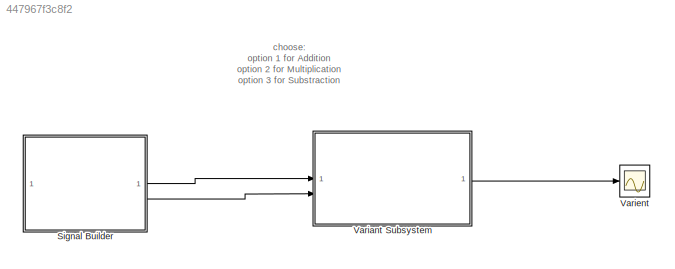
MODEL slx_447967f3c8f2
KIND model
CONFIG AbsTol = auto
CONFIG EnableMultiTasking = off
CONFIG FixedStep = auto
CONFIG MaxStep = auto
CONFIG MinStep = auto
CONFIG RelTol = 1e-3
CONFIG SampleTimeConstraint = Unconstrained
CONFIG SolverName = VariableStepAuto
CONFIG StartTime = 0.0
CONFIG StopTime = 10.0
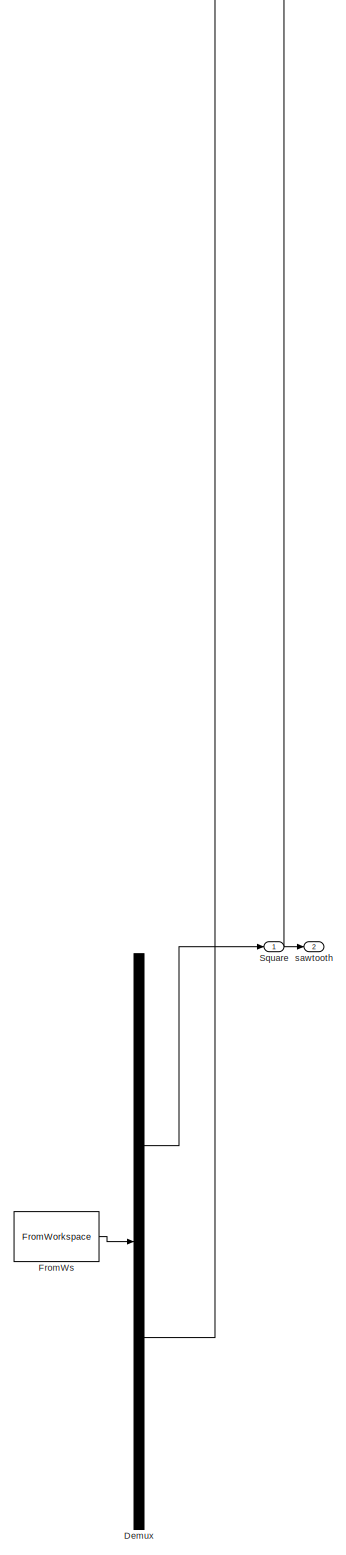
[diagram: Signal Builder - part 1/1, full width, bottom band]
BLOCK [SubSystem] Signal Builder
  ClipboardFcn = sigbuilder_block('clipboard');
  CloseFcn = sigbuilder_block('close');
  ContinueFcn = sigbuilder_block('continue');
  CopyFcn = sigbuilder_block('copy');
  DeleteFcn = sigbuilder_block('delete');
  LoadFcn = sigbuilder_block('load',[153.75 55.5 550.5 359.25 ]);
  MaskHideContents = on
  ModelCloseFcn = sigbuilder_block('modelClose');
  NameChangeFcn = sigbuilder_block('namechange');
  OpenFcn = sigbuilder_block('open',[437.6 199.2 550.4 400 ]);
  PauseFcn = sigbuilder_block('pause');
  PreSaveFcn = sigbuilder_block('preSave');
  StartFcn = sigbuilder_block('start');
  StopFcn = sigbuilder_block('stop');
  Tag = STV Subsys
BLOCK [Demux] Signal Builder/Demux
  DisplayOption = none
  Outputs = 2
  Tag = STV Demux
BLOCK [FromWorkspace] Signal Builder/FromWs
  Tag = STV FromWs
  VariableName = tuvar
BLOCK [Outport] Signal Builder/Square
  Tag = STV Outport
BLOCK [Outport] Signal Builder/sawtooth
  Port = 2
  Tag = STV Outport
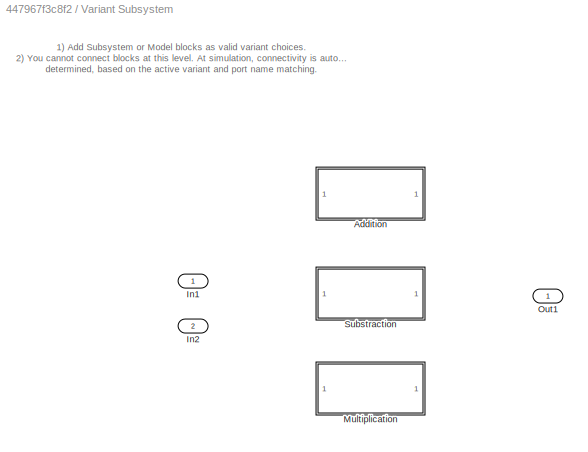
BLOCK [SubSystem] Variant Subsystem
  Variant = on
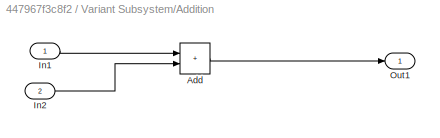
BLOCK [SubSystem] Variant Subsystem/Addition
  VariantControl = option==1
BLOCK [Sum] Variant Subsystem/Addition/Add
  IconShape = rectangular
BLOCK [Inport] Variant Subsystem/Addition/In1
BLOCK [Inport] Variant Subsystem/Addition/In2
  Port = 2
BLOCK [Outport] Variant Subsystem/Addition/Out1
BLOCK [Inport] Variant Subsystem/In1
BLOCK [Inport] Variant Subsystem/In2
  Port = 2
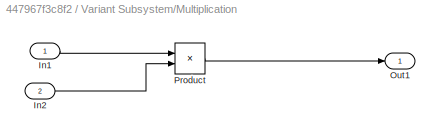
BLOCK [SubSystem] Variant Subsystem/Multiplication
  VariantControl = option==3
BLOCK [Inport] Variant Subsystem/Multiplication/In1
BLOCK [Inport] Variant Subsystem/Multiplication/In2
  Port = 2
BLOCK [Outport] Variant Subsystem/Multiplication/Out1
BLOCK [Product] Variant Subsystem/Multiplication/Product
BLOCK [Outport] Variant Subsystem/Out1
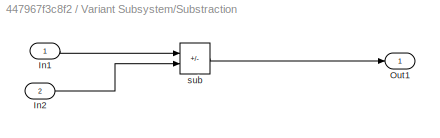
BLOCK [SubSystem] Variant Subsystem/Substraction
  VariantControl = option==2
BLOCK [Inport] Variant Subsystem/Substraction/In1
BLOCK [Inport] Variant Subsystem/Substraction/In2
  Port = 2
BLOCK [Outport] Variant Subsystem/Substraction/Out1
BLOCK [Sum] Variant Subsystem/Substraction/sub
  IconShape = rectangular
  Inputs = +-
BLOCK [Scope] Varient
  Floating = off
  NumInputPorts = 1
  ScopeSpecificationString = Simulink.scopes.TimeScopeBlockCfg('CurrentConfiguration', extmgr.ConfigurationSet(extmgr.Configuration('Core','General UI',true),extmgr.Configuration('Core','Source UI',true),extmgr.Configuration('Sources','WiredSimulink',true),extmgr.Configuration('Visuals','Time Domain',true,'SerializedDisplays',{struct('MinYLimReal','-0.25','MaxYLimReal','2.25','YLabelReal','','MinYLimMag','0.00000','MaxYLimMag...<+1346ch>
ANNOTATION (root): choose: option 1 for Addition option 2 for Multiplication option 3 for Substraction
ANNOTATION Variant Subsystem: 1) Add Subsystem or Model blocks as valid variant choices. 2) You cannot connect blocks at this level. At simulation, connectivity is automatically determined, based on the active variant and port name matching.
LINE Signal Builder:1 -> Variant Subsystem:1
LINE Signal Builder:2 -> Variant Subsystem:2
LINE Variant Subsystem/Addition/Add:1 -> Variant Subsystem/Addition/Out1:1
LINE Variant Subsystem/Addition/In1:1 -> Variant Subsystem/Addition/Add:1
LINE Variant Subsystem/Addition/In2:1 -> Variant Subsystem/Addition/Add:2
LINE Variant Subsystem/Multiplication/In1:1 -> Variant Subsystem/Multiplication/Product:1
LINE Variant Subsystem/Multiplication/In2:1 -> Variant Subsystem/Multiplication/Product:2
LINE Variant Subsystem/Multiplication/Product:1 -> Variant Subsystem/Multiplication/Out1:1
LINE Variant Subsystem/Substraction/In1:1 -> Variant Subsystem/Substraction/sub:1
LINE Variant Subsystem/Substraction/In2:1 -> Variant Subsystem/Substraction/sub:2
LINE Variant Subsystem/Substraction/sub:1 -> Variant Subsystem/Substraction/Out1:1
LINE Variant Subsystem:1 -> Varient:1
